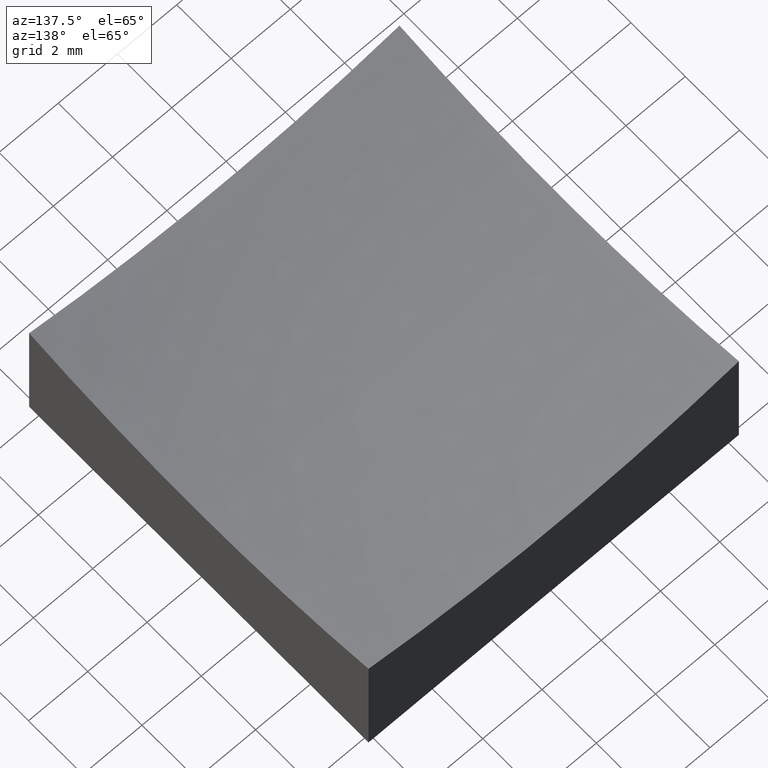
[diagram: clean part render]
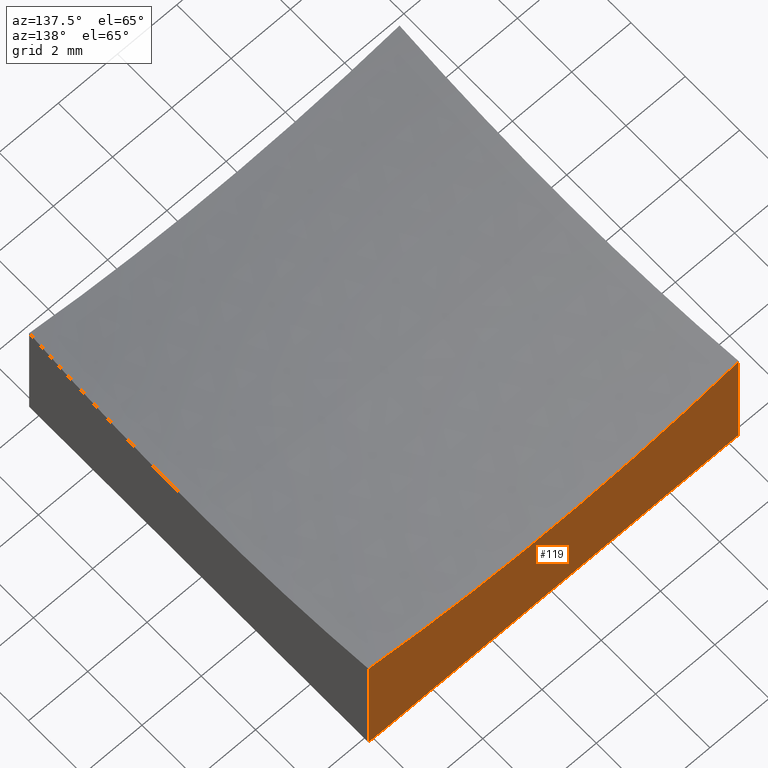
[diagram: same view with one face highlighted and labeled with its STEP entity id]
A machine part, auxiliary view. The second image highlights one B-rep face of the part: STEP entity #119.
In plain terms, the highlighted planar face has unit normal (0, 1, 0).
Its self-contained STEP definition (entity closure, byte-faithful):
#2 = EDGE_CURVE ( 'NONE', #167, #229, #179, .T. ) ;
#8 = EDGE_CURVE ( 'NONE', #167, #225, #51, .T. ) ;
#11 = CARTESIAN_POINT ( 'NONE',  ( -6.250000000000000000, 6.250000000000000888, 4.331637647050714079 ) ) ;
#17 = CARTESIAN_POINT ( 'NONE',  ( 6.250000000000000000, 6.250000000000000888, 10.00000000000000000 ) ) ;
#30 = ORIENTED_EDGE ( 'NONE', *, *, #57, .F. ) ;
#44 = VECTOR ( 'NONE', #187, 1000.000000000000000 ) ;
#51 = LINE ( 'NONE', #17, #215 ) ;
#57 = EDGE_CURVE ( 'NONE', #243, #225, #135, .T. ) ;
#76 = DIRECTION ( 'NONE',  ( 0.0000000000000000000, 1.000000000000000000, 0.0000000000000000000 ) ) ;
#79 = VECTOR ( 'NONE', #175, 1000.000000000000000 ) ;
#84 = ORIENTED_EDGE ( 'NONE', *, *, #224, .F. ) ;
#86 = CARTESIAN_POINT ( 'NONE',  ( 6.250000000000000000, 6.250000000000000888, 0.0000000000000000000 ) ) ;
#89 = CARTESIAN_POINT ( 'NONE',  ( -6.250000000000000000, 6.250000000000000888, 10.00000000000000000 ) ) ;
#93 = CARTESIAN_POINT ( 'NONE',  ( -6.250000000000000000, 6.250000000000000888, 0.0000000000000000000 ) ) ;
#106 = CARTESIAN_POINT ( 'NONE',  ( -6.250000000000000000, 6.250000000000000888, 10.00000000000000000 ) ) ;
#112 = DIRECTION ( 'NONE',  ( 0.0000000000000000000, -0.0000000000000000000, 1.000000000000000000 ) ) ;
#117 = AXIS2_PLACEMENT_3D ( 'NONE', #106, #76, #112 ) ;
#119 = ADVANCED_FACE ( 'NONE', ( #155 ), #235, .T. ) ;
#128 = CARTESIAN_POINT ( 'NONE',  ( 6.250000000000000000, 6.250000000000000888, 4.331637647050714079 ) ) ;
#135 = LINE ( 'NONE', #93, #79 ) ;
#145 = DIRECTION ( 'NONE',  ( -0.0000000000000000000, -0.0000000000000000000, -1.000000000000000000 ) ) ;
#155 = FACE_OUTER_BOUND ( 'NONE', #163, .T. ) ;
#163 = EDGE_LOOP ( 'NONE', ( #165, #220, #30, #84 ) ) ;
#165 = ORIENTED_EDGE ( 'NONE', *, *, #2, .F. ) ;
#166 = CARTESIAN_POINT ( 'NONE',  ( -6.250000000000000000, 6.250000000000000888, 0.0000000000000000000 ) ) ;
#167 = VERTEX_POINT ( 'NONE', #128 ) ;
#171 = DIRECTION ( 'NONE',  ( 0.0000000000000000000, 1.000000000000000000, 0.0000000000000000000 ) ) ;
#175 = DIRECTION ( 'NONE',  ( 1.000000000000000000, 0.0000000000000000000, 0.0000000000000000000 ) ) ;
#179 = CIRCLE ( 'NONE', #180, 29.34173648576375726 ) ;
#180 = AXIS2_PLACEMENT_3D ( 'NONE', #210, #171, #190 ) ;
#187 = DIRECTION ( 'NONE',  ( -0.0000000000000000000, -0.0000000000000000000, -1.000000000000000000 ) ) ;
#189 = LINE ( 'NONE', #89, #44 ) ;
#190 = DIRECTION ( 'NONE',  ( 0.0000000000000000000, 0.0000000000000000000, 1.000000000000000000 ) ) ;
#210 = CARTESIAN_POINT ( 'NONE',  ( 4.041334437186266200E-15, 6.250000000000000888, 33.00000000000000000 ) ) ;
#215 = VECTOR ( 'NONE', #145, 1000.000000000000000 ) ;
#220 = ORIENTED_EDGE ( 'NONE', *, *, #8, .T. ) ;
#224 = EDGE_CURVE ( 'NONE', #229, #243, #189, .T. ) ;
#225 = VERTEX_POINT ( 'NONE', #86 ) ;
#229 = VERTEX_POINT ( 'NONE', #11 ) ;
#235 = PLANE ( 'NONE',  #117 ) ;
#243 = VERTEX_POINT ( 'NONE', #166 ) ;